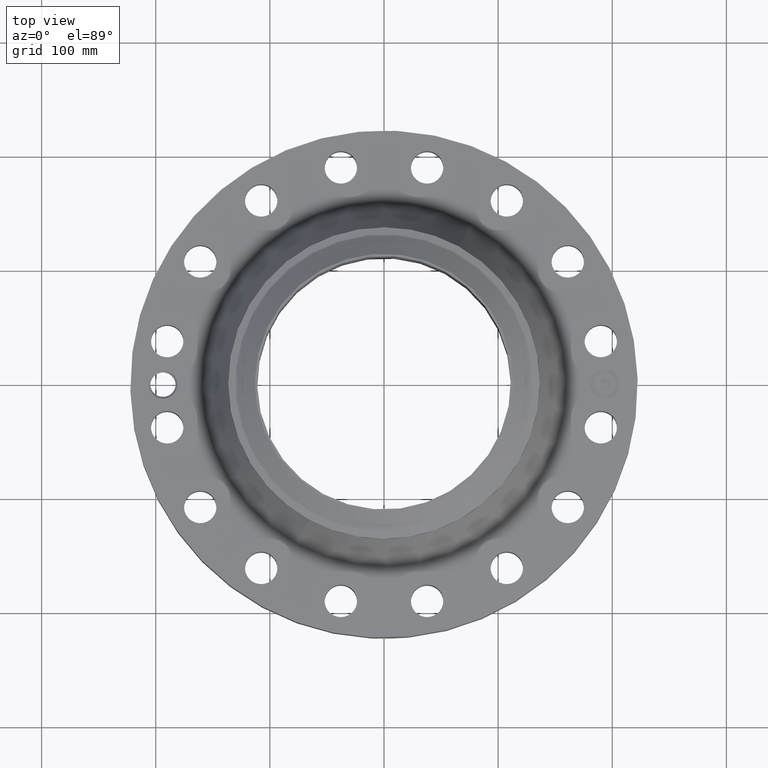
[diagram: clean part render]
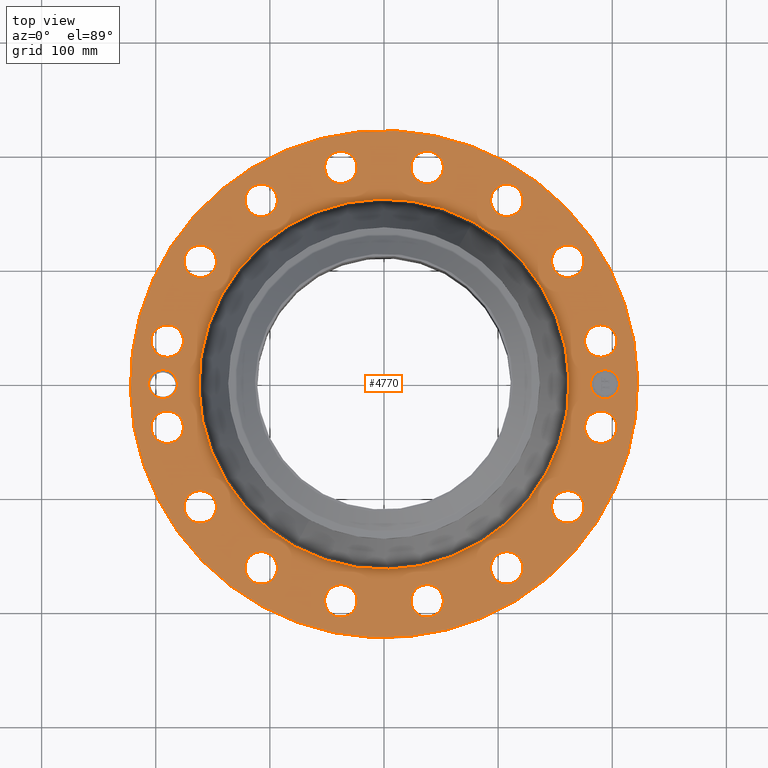
[diagram: same view with one face highlighted and labeled with its STEP entity id]
A machine part, top view. The second image highlights one B-rep face of the part: STEP entity #4770.
In plain terms, the highlighted planar face has unit normal (0, 0, -1).
Its self-contained STEP definition (entity closure, byte-faithful):
#3574=AXIS2_PLACEMENT_3D('Circle Axis2P3D',#3572,#3573,$) ;
#3600=AXIS2_PLACEMENT_3D('Circle Axis2P3D',#3598,#3599,$) ;
#4392=AXIS2_PLACEMENT_3D('Plane Axis2P3D',#4389,#4390,#4391) ;
#4396=AXIS2_PLACEMENT_3D('Circle Axis2P3D',#4394,#4395,$) ;
#4405=AXIS2_PLACEMENT_3D('Circle Axis2P3D',#4403,#4404,$) ;
#4436=AXIS2_PLACEMENT_3D('Circle Axis2P3D',#4434,#4435,$) ;
#4443=AXIS2_PLACEMENT_3D('Circle Axis2P3D',#4441,#4442,$) ;
#4450=AXIS2_PLACEMENT_3D('Circle Axis2P3D',#4448,#4449,$) ;
#4462=AXIS2_PLACEMENT_3D('Circle Axis2P3D',#4460,#4461,$) ;
#4471=AXIS2_PLACEMENT_3D('Circle Axis2P3D',#4469,#4470,$) ;
#4484=AXIS2_PLACEMENT_3D('Circle Axis2P3D',#4482,#4483,$) ;
#4493=AXIS2_PLACEMENT_3D('Circle Axis2P3D',#4491,#4492,$) ;
#4502=AXIS2_PLACEMENT_3D('Circle Axis2P3D',#4500,#4501,$) ;
#4511=AXIS2_PLACEMENT_3D('Circle Axis2P3D',#4509,#4510,$) ;
#4520=AXIS2_PLACEMENT_3D('Circle Axis2P3D',#4518,#4519,$) ;
#4529=AXIS2_PLACEMENT_3D('Circle Axis2P3D',#4527,#4528,$) ;
#4538=AXIS2_PLACEMENT_3D('Circle Axis2P3D',#4536,#4537,$) ;
#4547=AXIS2_PLACEMENT_3D('Circle Axis2P3D',#4545,#4546,$) ;
#4556=AXIS2_PLACEMENT_3D('Circle Axis2P3D',#4554,#4555,$) ;
#4565=AXIS2_PLACEMENT_3D('Circle Axis2P3D',#4563,#4564,$) ;
#4574=AXIS2_PLACEMENT_3D('Circle Axis2P3D',#4572,#4573,$) ;
#4583=AXIS2_PLACEMENT_3D('Circle Axis2P3D',#4581,#4582,$) ;
#4592=AXIS2_PLACEMENT_3D('Circle Axis2P3D',#4590,#4591,$) ;
#4601=AXIS2_PLACEMENT_3D('Circle Axis2P3D',#4599,#4600,$) ;
#4610=AXIS2_PLACEMENT_3D('Circle Axis2P3D',#4608,#4609,$) ;
#4619=AXIS2_PLACEMENT_3D('Circle Axis2P3D',#4617,#4618,$) ;
#4628=AXIS2_PLACEMENT_3D('Circle Axis2P3D',#4626,#4627,$) ;
#4637=AXIS2_PLACEMENT_3D('Circle Axis2P3D',#4635,#4636,$) ;
#4646=AXIS2_PLACEMENT_3D('Circle Axis2P3D',#4644,#4645,$) ;
#4655=AXIS2_PLACEMENT_3D('Circle Axis2P3D',#4653,#4654,$) ;
#4664=AXIS2_PLACEMENT_3D('Circle Axis2P3D',#4662,#4663,$) ;
#4673=AXIS2_PLACEMENT_3D('Circle Axis2P3D',#4671,#4672,$) ;
#4682=AXIS2_PLACEMENT_3D('Circle Axis2P3D',#4680,#4681,$) ;
#4691=AXIS2_PLACEMENT_3D('Circle Axis2P3D',#4689,#4690,$) ;
#4700=AXIS2_PLACEMENT_3D('Circle Axis2P3D',#4698,#4699,$) ;
#4709=AXIS2_PLACEMENT_3D('Circle Axis2P3D',#4707,#4708,$) ;
#4718=AXIS2_PLACEMENT_3D('Circle Axis2P3D',#4716,#4717,$) ;
#4727=AXIS2_PLACEMENT_3D('Circle Axis2P3D',#4725,#4726,$) ;
#4736=AXIS2_PLACEMENT_3D('Circle Axis2P3D',#4734,#4735,$) ;
#4745=AXIS2_PLACEMENT_3D('Circle Axis2P3D',#4743,#4744,$) ;
#4754=AXIS2_PLACEMENT_3D('Circle Axis2P3D',#4752,#4753,$) ;
#4763=AXIS2_PLACEMENT_3D('Circle Axis2P3D',#4761,#4762,$) ;
#3572=CARTESIAN_POINT('Axis2P3D Location',(0.,0.,2.19300000001)) ;
#3576=CARTESIAN_POINT('Vertex',(-3.06135849607,-5.60377913882,2.19300000001)) ;
#3578=CARTESIAN_POINT('Vertex',(3.06135849607,5.60377913882,2.19300000001)) ;
#3598=CARTESIAN_POINT('Axis2P3D Location',(0.,0.,2.19300000001)) ;
#4389=CARTESIAN_POINT('Axis2P3D Location',(0.,8.75000000004,2.19300000001)) ;
#4394=CARTESIAN_POINT('Axis2P3D Location',(0.,0.,2.19300000001)) ;
#4398=CARTESIAN_POINT('Vertex',(4.1949734628,7.67884741657,2.19300000001)) ;
#4400=CARTESIAN_POINT('Vertex',(-4.1949734628,-7.67884741657,2.19300000001)) ;
#4403=CARTESIAN_POINT('Axis2P3D Location',(0.,0.,2.19300000001)) ;
#4413=CARTESIAN_POINT('Control Point',(-7.12500000003,0.,2.19300000001)) ;
#4414=CARTESIAN_POINT('Control Point',(-7.12549933739,0.0123420310321,2.19300000001)) ;
#4415=CARTESIAN_POINT('Control Point',(-7.12637981879,0.0246614467963,2.19300000001)) ;
#4416=CARTESIAN_POINT('Control Point',(-7.1276405658,0.0369424262174,2.19300000001)) ;
#4417=CARTESIAN_POINT('Control Point',(-7.12927967572,0.0491691948842,2.19300000001)) ;
#4418=CARTESIAN_POINT('Control Point',(-7.13129426485,0.0613261531135,2.19300000001)) ;
#4419=CARTESIAN_POINT('Vertex',(-7.12500000003,0.,2.19300000001)) ;
#4421=CARTESIAN_POINT('Vertex',(-7.13129426485,0.0613261531135,2.19300000001)) ;
#4425=CARTESIAN_POINT('Control Point',(-7.12500000003,0.,2.19300000001)) ;
#4426=CARTESIAN_POINT('Control Point',(-7.12549957614,-0.0123479326721,2.19300000001)) ;
#4427=CARTESIAN_POINT('Control Point',(-7.12638066089,-0.0246732284364,2.19300000001)) ;
#4428=CARTESIAN_POINT('Control Point',(-7.12764219898,-0.0369596674104,2.19300000001)) ;
#4429=CARTESIAN_POINT('Control Point',(-7.12928214234,-0.0491911939596,2.19300000001)) ;
#4430=CARTESIAN_POINT('Control Point',(-7.13129747815,-0.0613520162082,2.19300000001)) ;
#4431=CARTESIAN_POINT('Vertex',(-7.13129747815,-0.0613520162082,2.19300000001)) ;
#4434=CARTESIAN_POINT('Axis2P3D Location',(-7.62500000003,7.83275456743E-015,2.19300000001)) ;
#4438=CARTESIAN_POINT('Vertex',(-7.18840267549,-0.238514205457,2.19300000001)) ;
#4441=CARTESIAN_POINT('Axis2P3D Location',(-7.62500000003,7.83275456743E-015,2.19300000001)) ;
#4445=CARTESIAN_POINT('Vertex',(-8.06159732457,0.238514205457,2.19300000001)) ;
#4448=CARTESIAN_POINT('Axis2P3D Location',(-7.62500000003,7.83275456743E-015,2.19300000001)) ;
#4460=CARTESIAN_POINT('Axis2P3D Location',(7.4784877631,-1.48756370538,2.19300000001)) ;
#4464=CARTESIAN_POINT('Vertex',(6.98704152844,-1.21908540376,2.19300000001)) ;
#4466=CARTESIAN_POINT('Vertex',(7.96993399777,-1.756042007,2.19300000001)) ;
#4469=CARTESIAN_POINT('Axis2P3D Location',(7.4784877631,-1.48756370538,2.19300000001)) ;
#4482=CARTESIAN_POINT('Axis2P3D Location',(6.33995579383,-4.23622302679,2.19300000001)) ;
#4486=CARTESIAN_POINT('Vertex',(6.69125071339,-4.67233296648,2.19300000001)) ;
#4488=CARTESIAN_POINT('Vertex',(5.98866087428,-3.8001130871,2.19300000001)) ;
#4491=CARTESIAN_POINT('Axis2P3D Location',(6.33995579383,-4.23622302679,2.19300000001)) ;
#4500=CARTESIAN_POINT('Axis2P3D Location',(4.23622302679,-6.33995579383,2.19300000001)) ;
#4504=CARTESIAN_POINT('Vertex',(4.39388516423,-6.87730358663,2.19300000001)) ;
#4506=CARTESIAN_POINT('Vertex',(4.07856088935,-5.80260800104,2.19300000001)) ;
#4509=CARTESIAN_POINT('Axis2P3D Location',(4.23622302679,-6.33995579383,2.19300000001)) ;
#4518=CARTESIAN_POINT('Axis2P3D Location',(1.48756370538,-7.4784877631,2.19300000001)) ;
#4522=CARTESIAN_POINT('Vertex',(1.42759042949,-8.03526707862,2.19300000001)) ;
#4524=CARTESIAN_POINT('Vertex',(1.54753698127,-6.92170844759,2.19300000001)) ;
#4527=CARTESIAN_POINT('Axis2P3D Location',(1.48756370538,-7.4784877631,2.19300000001)) ;
#4536=CARTESIAN_POINT('Axis2P3D Location',(-1.48756370538,-7.4784877631,2.19300000001)) ;
#4540=CARTESIAN_POINT('Vertex',(-1.756042007,-7.96993399777,2.19300000001)) ;
#4542=CARTESIAN_POINT('Vertex',(-1.21908540376,-6.98704152844,2.19300000001)) ;
#4545=CARTESIAN_POINT('Axis2P3D Location',(-1.48756370538,-7.4784877631,2.19300000001)) ;
#4554=CARTESIAN_POINT('Axis2P3D Location',(-4.23622302679,-6.33995579383,2.19300000001)) ;
#4558=CARTESIAN_POINT('Vertex',(-4.67233296648,-6.69125071339,2.19300000001)) ;
#4560=CARTESIAN_POINT('Vertex',(-3.8001130871,-5.98866087428,2.19300000001)) ;
#4563=CARTESIAN_POINT('Axis2P3D Location',(-4.23622302679,-6.33995579383,2.19300000001)) ;
#4572=CARTESIAN_POINT('Axis2P3D Location',(-6.33995579383,-4.23622302679,2.19300000001)) ;
#4576=CARTESIAN_POINT('Vertex',(-6.87730358663,-4.39388516423,2.19300000001)) ;
#4578=CARTESIAN_POINT('Vertex',(-5.80260800104,-4.07856088935,2.19300000001)) ;
#4581=CARTESIAN_POINT('Axis2P3D Location',(-6.33995579383,-4.23622302679,2.19300000001)) ;
#4590=CARTESIAN_POINT('Axis2P3D Location',(-7.4784877631,-1.48756370538,2.19300000001)) ;
#4594=CARTESIAN_POINT('Vertex',(-8.03526707862,-1.42759042949,2.19300000001)) ;
#4596=CARTESIAN_POINT('Vertex',(-6.92170844759,-1.54753698127,2.19300000001)) ;
#4599=CARTESIAN_POINT('Axis2P3D Location',(-7.4784877631,-1.48756370538,2.19300000001)) ;
#4608=CARTESIAN_POINT('Axis2P3D Location',(-7.4784877631,1.48756370538,2.19300000001)) ;
#4612=CARTESIAN_POINT('Vertex',(-7.96993399777,1.756042007,2.19300000001)) ;
#4614=CARTESIAN_POINT('Vertex',(-6.98704152844,1.21908540376,2.19300000001)) ;
#4617=CARTESIAN_POINT('Axis2P3D Location',(-7.4784877631,1.48756370538,2.19300000001)) ;
#4626=CARTESIAN_POINT('Axis2P3D Location',(-6.33995579383,4.23622302679,2.19300000001)) ;
#4630=CARTESIAN_POINT('Vertex',(-6.69125071339,4.67233296648,2.19300000001)) ;
#4632=CARTESIAN_POINT('Vertex',(-5.98866087428,3.8001130871,2.19300000001)) ;
#4635=CARTESIAN_POINT('Axis2P3D Location',(-6.33995579383,4.23622302679,2.19300000001)) ;
#4644=CARTESIAN_POINT('Axis2P3D Location',(-4.23622302679,6.33995579383,2.19300000001)) ;
#4648=CARTESIAN_POINT('Vertex',(-4.39388516423,6.87730358663,2.19300000001)) ;
#4650=CARTESIAN_POINT('Vertex',(-4.07856088935,5.80260800104,2.19300000001)) ;
#4653=CARTESIAN_POINT('Axis2P3D Location',(-4.23622302679,6.33995579383,2.19300000001)) ;
#4662=CARTESIAN_POINT('Axis2P3D Location',(-1.48756370538,7.4784877631,2.19300000001)) ;
#4666=CARTESIAN_POINT('Vertex',(-1.42759042949,8.03526707862,2.19300000001)) ;
#4668=CARTESIAN_POINT('Vertex',(-1.54753698127,6.92170844759,2.19300000001)) ;
#4671=CARTESIAN_POINT('Axis2P3D Location',(-1.48756370538,7.4784877631,2.19300000001)) ;
#4680=CARTESIAN_POINT('Axis2P3D Location',(1.48756370538,7.4784877631,2.19300000001)) ;
#4684=CARTESIAN_POINT('Vertex',(1.756042007,7.96993399777,2.19300000001)) ;
#4686=CARTESIAN_POINT('Vertex',(1.21908540376,6.98704152844,2.19300000001)) ;
#4689=CARTESIAN_POINT('Axis2P3D Location',(1.48756370538,7.4784877631,2.19300000001)) ;
#4698=CARTESIAN_POINT('Axis2P3D Location',(4.23622302679,6.33995579383,2.19300000001)) ;
#4702=CARTESIAN_POINT('Vertex',(4.67233296648,6.69125071339,2.19300000001)) ;
#4704=CARTESIAN_POINT('Vertex',(3.8001130871,5.98866087428,2.19300000001)) ;
#4707=CARTESIAN_POINT('Axis2P3D Location',(4.23622302679,6.33995579383,2.19300000001)) ;
#4716=CARTESIAN_POINT('Axis2P3D Location',(6.33995579383,4.23622302679,2.19300000001)) ;
#4720=CARTESIAN_POINT('Vertex',(6.87730358663,4.39388516423,2.19300000001)) ;
#4722=CARTESIAN_POINT('Vertex',(5.80260800104,4.07856088935,2.19300000001)) ;
#4725=CARTESIAN_POINT('Axis2P3D Location',(6.33995579383,4.23622302679,2.19300000001)) ;
#4734=CARTESIAN_POINT('Axis2P3D Location',(7.4784877631,1.48756370538,2.19300000001)) ;
#4738=CARTESIAN_POINT('Vertex',(8.03526707862,1.42759042949,2.19300000001)) ;
#4740=CARTESIAN_POINT('Vertex',(6.92170844759,1.54753698127,2.19300000001)) ;
#4743=CARTESIAN_POINT('Axis2P3D Location',(7.4784877631,1.48756370538,2.19300000001)) ;
#4752=CARTESIAN_POINT('Axis2P3D Location',(7.62500000003,-3.35689481461E-014,2.19300000001)) ;
#4756=CARTESIAN_POINT('Vertex',(7.62500000003,0.499999995002,2.19300000001)) ;
#4758=CARTESIAN_POINT('Vertex',(7.62500000003,-0.499999995002,2.19300000001)) ;
#4761=CARTESIAN_POINT('Axis2P3D Location',(7.62500000003,-3.35689481461E-014,2.19300000001)) ;
#3573=DIRECTION('Axis2P3D Direction',(0.,0.,-0.0393700787402)) ;
#3599=DIRECTION('Axis2P3D Direction',(0.,0.,-0.0393700787402)) ;
#4390=DIRECTION('Axis2P3D Direction',(0.,0.,-0.0393700787402)) ;
#4391=DIRECTION('Axis2P3D XDirection',(0.0393700787402,0.,0.)) ;
#4395=DIRECTION('Axis2P3D Direction',(0.,0.,-0.0393700787402)) ;
#4404=DIRECTION('Axis2P3D Direction',(0.,0.,-0.0393700787402)) ;
#4435=DIRECTION('Axis2P3D Direction',(0.,0.,-0.0393700787402)) ;
#4442=DIRECTION('Axis2P3D Direction',(0.,0.,-0.0393700787402)) ;
#4449=DIRECTION('Axis2P3D Direction',(0.,0.,-0.0393700787402)) ;
#4461=DIRECTION('Axis2P3D Direction',(0.,0.,-0.0393700787402)) ;
#4470=DIRECTION('Axis2P3D Direction',(0.,0.,-0.0393700787402)) ;
#4483=DIRECTION('Axis2P3D Direction',(0.,0.,-0.0393700787402)) ;
#4492=DIRECTION('Axis2P3D Direction',(0.,0.,-0.0393700787402)) ;
#4501=DIRECTION('Axis2P3D Direction',(0.,0.,-0.0393700787402)) ;
#4510=DIRECTION('Axis2P3D Direction',(0.,0.,-0.0393700787402)) ;
#4519=DIRECTION('Axis2P3D Direction',(0.,0.,-0.0393700787402)) ;
#4528=DIRECTION('Axis2P3D Direction',(0.,0.,-0.0393700787402)) ;
#4537=DIRECTION('Axis2P3D Direction',(0.,0.,-0.0393700787402)) ;
#4546=DIRECTION('Axis2P3D Direction',(0.,0.,-0.0393700787402)) ;
#4555=DIRECTION('Axis2P3D Direction',(0.,0.,-0.0393700787402)) ;
#4564=DIRECTION('Axis2P3D Direction',(0.,0.,-0.0393700787402)) ;
#4573=DIRECTION('Axis2P3D Direction',(0.,0.,-0.0393700787402)) ;
#4582=DIRECTION('Axis2P3D Direction',(0.,0.,-0.0393700787402)) ;
#4591=DIRECTION('Axis2P3D Direction',(0.,0.,-0.0393700787402)) ;
#4600=DIRECTION('Axis2P3D Direction',(0.,0.,-0.0393700787402)) ;
#4609=DIRECTION('Axis2P3D Direction',(0.,0.,-0.0393700787402)) ;
#4618=DIRECTION('Axis2P3D Direction',(0.,0.,-0.0393700787402)) ;
#4627=DIRECTION('Axis2P3D Direction',(0.,0.,-0.0393700787402)) ;
#4636=DIRECTION('Axis2P3D Direction',(0.,0.,-0.0393700787402)) ;
#4645=DIRECTION('Axis2P3D Direction',(0.,0.,-0.0393700787402)) ;
#4654=DIRECTION('Axis2P3D Direction',(0.,0.,-0.0393700787402)) ;
#4663=DIRECTION('Axis2P3D Direction',(0.,0.,-0.0393700787402)) ;
#4672=DIRECTION('Axis2P3D Direction',(0.,0.,-0.0393700787402)) ;
#4681=DIRECTION('Axis2P3D Direction',(0.,0.,-0.0393700787402)) ;
#4690=DIRECTION('Axis2P3D Direction',(0.,0.,-0.0393700787402)) ;
#4699=DIRECTION('Axis2P3D Direction',(0.,0.,-0.0393700787402)) ;
#4708=DIRECTION('Axis2P3D Direction',(0.,0.,-0.0393700787402)) ;
#4717=DIRECTION('Axis2P3D Direction',(0.,0.,-0.0393700787402)) ;
#4726=DIRECTION('Axis2P3D Direction',(0.,0.,-0.0393700787402)) ;
#4735=DIRECTION('Axis2P3D Direction',(0.,0.,-0.0393700787402)) ;
#4744=DIRECTION('Axis2P3D Direction',(0.,0.,-0.0393700787402)) ;
#4753=DIRECTION('Axis2P3D Direction',(0.,0.,-0.0393700787402)) ;
#4762=DIRECTION('Axis2P3D Direction',(0.,0.,-0.0393700787402)) ;
#4409=ORIENTED_EDGE('',*,*,#4402,.F.) ;
#4410=ORIENTED_EDGE('',*,*,#4407,.F.) ;
#4454=ORIENTED_EDGE('',*,*,#4423,.F.) ;
#4455=ORIENTED_EDGE('',*,*,#4433,.T.) ;
#4456=ORIENTED_EDGE('',*,*,#4440,.T.) ;
#4457=ORIENTED_EDGE('',*,*,#4447,.T.) ;
#4458=ORIENTED_EDGE('',*,*,#4452,.T.) ;
#4475=ORIENTED_EDGE('',*,*,#4468,.T.) ;
#4476=ORIENTED_EDGE('',*,*,#4473,.T.) ;
#4479=ORIENTED_EDGE('',*,*,#3580,.T.) ;
#4480=ORIENTED_EDGE('',*,*,#3602,.T.) ;
#4497=ORIENTED_EDGE('',*,*,#4490,.T.) ;
#4498=ORIENTED_EDGE('',*,*,#4495,.T.) ;
#4515=ORIENTED_EDGE('',*,*,#4508,.T.) ;
#4516=ORIENTED_EDGE('',*,*,#4513,.T.) ;
#4533=ORIENTED_EDGE('',*,*,#4526,.T.) ;
#4534=ORIENTED_EDGE('',*,*,#4531,.T.) ;
#4551=ORIENTED_EDGE('',*,*,#4544,.T.) ;
#4552=ORIENTED_EDGE('',*,*,#4549,.T.) ;
#4569=ORIENTED_EDGE('',*,*,#4562,.T.) ;
#4570=ORIENTED_EDGE('',*,*,#4567,.T.) ;
#4587=ORIENTED_EDGE('',*,*,#4580,.T.) ;
#4588=ORIENTED_EDGE('',*,*,#4585,.T.) ;
#4605=ORIENTED_EDGE('',*,*,#4598,.T.) ;
#4606=ORIENTED_EDGE('',*,*,#4603,.T.) ;
#4623=ORIENTED_EDGE('',*,*,#4616,.T.) ;
#4624=ORIENTED_EDGE('',*,*,#4621,.T.) ;
#4641=ORIENTED_EDGE('',*,*,#4634,.T.) ;
#4642=ORIENTED_EDGE('',*,*,#4639,.T.) ;
#4659=ORIENTED_EDGE('',*,*,#4652,.T.) ;
#4660=ORIENTED_EDGE('',*,*,#4657,.T.) ;
#4677=ORIENTED_EDGE('',*,*,#4670,.T.) ;
#4678=ORIENTED_EDGE('',*,*,#4675,.T.) ;
#4695=ORIENTED_EDGE('',*,*,#4688,.T.) ;
#4696=ORIENTED_EDGE('',*,*,#4693,.T.) ;
#4713=ORIENTED_EDGE('',*,*,#4706,.T.) ;
#4714=ORIENTED_EDGE('',*,*,#4711,.T.) ;
#4731=ORIENTED_EDGE('',*,*,#4724,.T.) ;
#4732=ORIENTED_EDGE('',*,*,#4729,.T.) ;
#4749=ORIENTED_EDGE('',*,*,#4742,.T.) ;
#4750=ORIENTED_EDGE('',*,*,#4747,.T.) ;
#4767=ORIENTED_EDGE('',*,*,#4760,.T.) ;
#4768=ORIENTED_EDGE('',*,*,#4765,.T.) ;
#4459=FACE_BOUND('',#4453,.T.) ;
#4477=FACE_BOUND('',#4474,.T.) ;
#4481=FACE_BOUND('',#4478,.T.) ;
#4499=FACE_BOUND('',#4496,.T.) ;
#4517=FACE_BOUND('',#4514,.T.) ;
#4535=FACE_BOUND('',#4532,.T.) ;
#4553=FACE_BOUND('',#4550,.T.) ;
#4571=FACE_BOUND('',#4568,.T.) ;
#4589=FACE_BOUND('',#4586,.T.) ;
#4607=FACE_BOUND('',#4604,.T.) ;
#4625=FACE_BOUND('',#4622,.T.) ;
#4643=FACE_BOUND('',#4640,.T.) ;
#4661=FACE_BOUND('',#4658,.T.) ;
#4679=FACE_BOUND('',#4676,.T.) ;
#4697=FACE_BOUND('',#4694,.T.) ;
#4715=FACE_BOUND('',#4712,.T.) ;
#4733=FACE_BOUND('',#4730,.T.) ;
#4751=FACE_BOUND('',#4748,.T.) ;
#4769=FACE_BOUND('',#4766,.T.) ;
#4770=ADVANCED_FACE('PartBody',(#4411,#4459,#4477,#4481,#4499,#4517,#4535,#4553,#4571,#4589,#4607,#4625,#4643,#4661,#4679,#4697,#4715,#4733,#4751,#4769),#4393,.F.) ;
#4412=B_SPLINE_CURVE_WITH_KNOTS('',5,(#4413,#4414,#4415,#4416,#4417,#4418),.UNSPECIFIED.,.F.,.U.,(6,6),(0.,2.15175300372),.UNSPECIFIED.) ;
#4424=B_SPLINE_CURVE_WITH_KNOTS('',5,(#4425,#4426,#4427,#4428,#4429,#4430),.UNSPECIFIED.,.F.,.U.,(6,6),(0.,2.15278191622),.UNSPECIFIED.) ;
#3575=CIRCLE('generated circle',#3574,6.38547229875) ;
#3601=CIRCLE('generated circle',#3600,6.38547229875) ;
#4397=CIRCLE('generated circle',#4396,8.75000000004) ;
#4406=CIRCLE('generated circle',#4405,8.75000000004) ;
#4437=CIRCLE('generated circle',#4436,0.497500000002) ;
#4444=CIRCLE('generated circle',#4443,0.497500000002) ;
#4451=CIRCLE('generated circle',#4450,0.497500000002) ;
#4463=CIRCLE('generated circle',#4462,0.560000000002) ;
#4472=CIRCLE('generated circle',#4471,0.560000000002) ;
#4485=CIRCLE('generated circle',#4484,0.560000000002) ;
#4494=CIRCLE('generated circle',#4493,0.560000000002) ;
#4503=CIRCLE('generated circle',#4502,0.560000000002) ;
#4512=CIRCLE('generated circle',#4511,0.560000000002) ;
#4521=CIRCLE('generated circle',#4520,0.560000000002) ;
#4530=CIRCLE('generated circle',#4529,0.560000000002) ;
#4539=CIRCLE('generated circle',#4538,0.560000000002) ;
#4548=CIRCLE('generated circle',#4547,0.560000000002) ;
#4557=CIRCLE('generated circle',#4556,0.560000000002) ;
#4566=CIRCLE('generated circle',#4565,0.560000000002) ;
#4575=CIRCLE('generated circle',#4574,0.560000000002) ;
#4584=CIRCLE('generated circle',#4583,0.560000000002) ;
#4593=CIRCLE('generated circle',#4592,0.560000000002) ;
#4602=CIRCLE('generated circle',#4601,0.560000000002) ;
#4611=CIRCLE('generated circle',#4610,0.560000000002) ;
#4620=CIRCLE('generated circle',#4619,0.560000000002) ;
#4629=CIRCLE('generated circle',#4628,0.560000000002) ;
#4638=CIRCLE('generated circle',#4637,0.560000000002) ;
#4647=CIRCLE('generated circle',#4646,0.560000000002) ;
#4656=CIRCLE('generated circle',#4655,0.560000000002) ;
#4665=CIRCLE('generated circle',#4664,0.560000000002) ;
#4674=CIRCLE('generated circle',#4673,0.560000000002) ;
#4683=CIRCLE('generated circle',#4682,0.560000000002) ;
#4692=CIRCLE('generated circle',#4691,0.560000000002) ;
#4701=CIRCLE('generated circle',#4700,0.560000000002) ;
#4710=CIRCLE('generated circle',#4709,0.560000000002) ;
#4719=CIRCLE('generated circle',#4718,0.560000000002) ;
#4728=CIRCLE('generated circle',#4727,0.560000000002) ;
#4737=CIRCLE('generated circle',#4736,0.560000000002) ;
#4746=CIRCLE('generated circle',#4745,0.560000000002) ;
#4755=CIRCLE('generated circle',#4754,0.499999995002) ;
#4764=CIRCLE('generated circle',#4763,0.499999995002) ;
#3580=EDGE_CURVE('',#3577,#3579,#3575,.T.) ;
#3602=EDGE_CURVE('',#3579,#3577,#3601,.T.) ;
#4402=EDGE_CURVE('',#4399,#4401,#4397,.T.) ;
#4407=EDGE_CURVE('',#4401,#4399,#4406,.T.) ;
#4423=EDGE_CURVE('',#4420,#4422,#4412,.T.) ;
#4433=EDGE_CURVE('',#4420,#4432,#4424,.T.) ;
#4440=EDGE_CURVE('',#4432,#4439,#4437,.T.) ;
#4447=EDGE_CURVE('',#4439,#4446,#4444,.T.) ;
#4452=EDGE_CURVE('',#4446,#4422,#4451,.T.) ;
#4468=EDGE_CURVE('',#4465,#4467,#4463,.T.) ;
#4473=EDGE_CURVE('',#4467,#4465,#4472,.T.) ;
#4490=EDGE_CURVE('',#4487,#4489,#4485,.T.) ;
#4495=EDGE_CURVE('',#4489,#4487,#4494,.T.) ;
#4508=EDGE_CURVE('',#4505,#4507,#4503,.T.) ;
#4513=EDGE_CURVE('',#4507,#4505,#4512,.T.) ;
#4526=EDGE_CURVE('',#4523,#4525,#4521,.T.) ;
#4531=EDGE_CURVE('',#4525,#4523,#4530,.T.) ;
#4544=EDGE_CURVE('',#4541,#4543,#4539,.T.) ;
#4549=EDGE_CURVE('',#4543,#4541,#4548,.T.) ;
#4562=EDGE_CURVE('',#4559,#4561,#4557,.T.) ;
#4567=EDGE_CURVE('',#4561,#4559,#4566,.T.) ;
#4580=EDGE_CURVE('',#4577,#4579,#4575,.T.) ;
#4585=EDGE_CURVE('',#4579,#4577,#4584,.T.) ;
#4598=EDGE_CURVE('',#4595,#4597,#4593,.T.) ;
#4603=EDGE_CURVE('',#4597,#4595,#4602,.T.) ;
#4616=EDGE_CURVE('',#4613,#4615,#4611,.T.) ;
#4621=EDGE_CURVE('',#4615,#4613,#4620,.T.) ;
#4634=EDGE_CURVE('',#4631,#4633,#4629,.T.) ;
#4639=EDGE_CURVE('',#4633,#4631,#4638,.T.) ;
#4652=EDGE_CURVE('',#4649,#4651,#4647,.T.) ;
#4657=EDGE_CURVE('',#4651,#4649,#4656,.T.) ;
#4670=EDGE_CURVE('',#4667,#4669,#4665,.T.) ;
#4675=EDGE_CURVE('',#4669,#4667,#4674,.T.) ;
#4688=EDGE_CURVE('',#4685,#4687,#4683,.T.) ;
#4693=EDGE_CURVE('',#4687,#4685,#4692,.T.) ;
#4706=EDGE_CURVE('',#4703,#4705,#4701,.T.) ;
#4711=EDGE_CURVE('',#4705,#4703,#4710,.T.) ;
#4724=EDGE_CURVE('',#4721,#4723,#4719,.T.) ;
#4729=EDGE_CURVE('',#4723,#4721,#4728,.T.) ;
#4742=EDGE_CURVE('',#4739,#4741,#4737,.T.) ;
#4747=EDGE_CURVE('',#4741,#4739,#4746,.T.) ;
#4760=EDGE_CURVE('',#4757,#4759,#4755,.T.) ;
#4765=EDGE_CURVE('',#4759,#4757,#4764,.T.) ;
#4408=EDGE_LOOP('',(#4409,#4410)) ;
#4453=EDGE_LOOP('',(#4454,#4455,#4456,#4457,#4458)) ;
#4474=EDGE_LOOP('',(#4475,#4476)) ;
#4478=EDGE_LOOP('',(#4479,#4480)) ;
#4496=EDGE_LOOP('',(#4497,#4498)) ;
#4514=EDGE_LOOP('',(#4515,#4516)) ;
#4532=EDGE_LOOP('',(#4533,#4534)) ;
#4550=EDGE_LOOP('',(#4551,#4552)) ;
#4568=EDGE_LOOP('',(#4569,#4570)) ;
#4586=EDGE_LOOP('',(#4587,#4588)) ;
#4604=EDGE_LOOP('',(#4605,#4606)) ;
#4622=EDGE_LOOP('',(#4623,#4624)) ;
#4640=EDGE_LOOP('',(#4641,#4642)) ;
#4658=EDGE_LOOP('',(#4659,#4660)) ;
#4676=EDGE_LOOP('',(#4677,#4678)) ;
#4694=EDGE_LOOP('',(#4695,#4696)) ;
#4712=EDGE_LOOP('',(#4713,#4714)) ;
#4730=EDGE_LOOP('',(#4731,#4732)) ;
#4748=EDGE_LOOP('',(#4749,#4750)) ;
#4766=EDGE_LOOP('',(#4767,#4768)) ;
#4411=FACE_OUTER_BOUND('',#4408,.T.) ;
#4393=PLANE('',#4392) ;
#3577=VERTEX_POINT('',#3576) ;
#3579=VERTEX_POINT('',#3578) ;
#4399=VERTEX_POINT('',#4398) ;
#4401=VERTEX_POINT('',#4400) ;
#4420=VERTEX_POINT('',#4419) ;
#4422=VERTEX_POINT('',#4421) ;
#4432=VERTEX_POINT('',#4431) ;
#4439=VERTEX_POINT('',#4438) ;
#4446=VERTEX_POINT('',#4445) ;
#4465=VERTEX_POINT('',#4464) ;
#4467=VERTEX_POINT('',#4466) ;
#4487=VERTEX_POINT('',#4486) ;
#4489=VERTEX_POINT('',#4488) ;
#4505=VERTEX_POINT('',#4504) ;
#4507=VERTEX_POINT('',#4506) ;
#4523=VERTEX_POINT('',#4522) ;
#4525=VERTEX_POINT('',#4524) ;
#4541=VERTEX_POINT('',#4540) ;
#4543=VERTEX_POINT('',#4542) ;
#4559=VERTEX_POINT('',#4558) ;
#4561=VERTEX_POINT('',#4560) ;
#4577=VERTEX_POINT('',#4576) ;
#4579=VERTEX_POINT('',#4578) ;
#4595=VERTEX_POINT('',#4594) ;
#4597=VERTEX_POINT('',#4596) ;
#4613=VERTEX_POINT('',#4612) ;
#4615=VERTEX_POINT('',#4614) ;
#4631=VERTEX_POINT('',#4630) ;
#4633=VERTEX_POINT('',#4632) ;
#4649=VERTEX_POINT('',#4648) ;
#4651=VERTEX_POINT('',#4650) ;
#4667=VERTEX_POINT('',#4666) ;
#4669=VERTEX_POINT('',#4668) ;
#4685=VERTEX_POINT('',#4684) ;
#4687=VERTEX_POINT('',#4686) ;
#4703=VERTEX_POINT('',#4702) ;
#4705=VERTEX_POINT('',#4704) ;
#4721=VERTEX_POINT('',#4720) ;
#4723=VERTEX_POINT('',#4722) ;
#4739=VERTEX_POINT('',#4738) ;
#4741=VERTEX_POINT('',#4740) ;
#4757=VERTEX_POINT('',#4756) ;
#4759=VERTEX_POINT('',#4758) ;